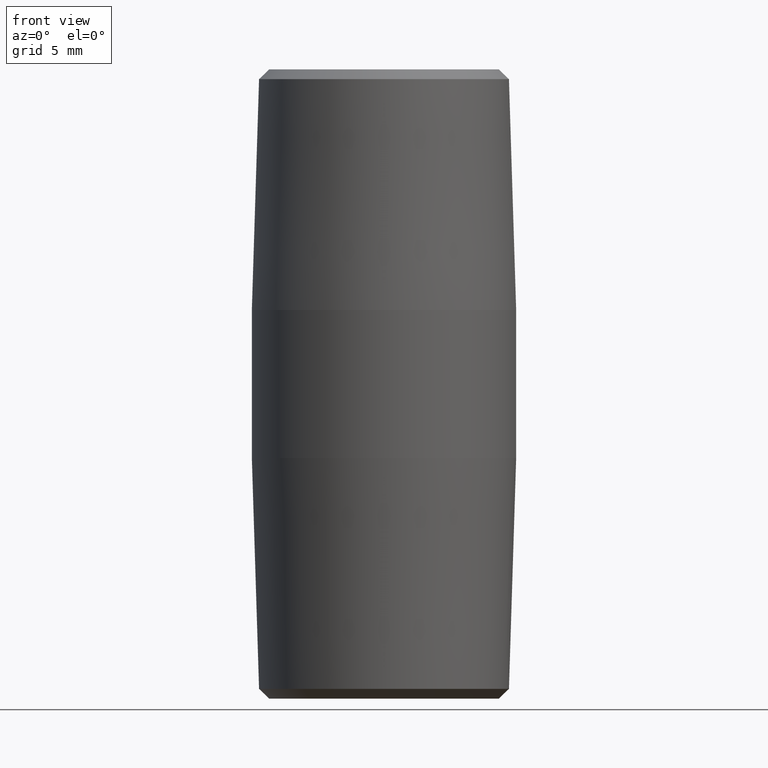
[diagram: clean part render]
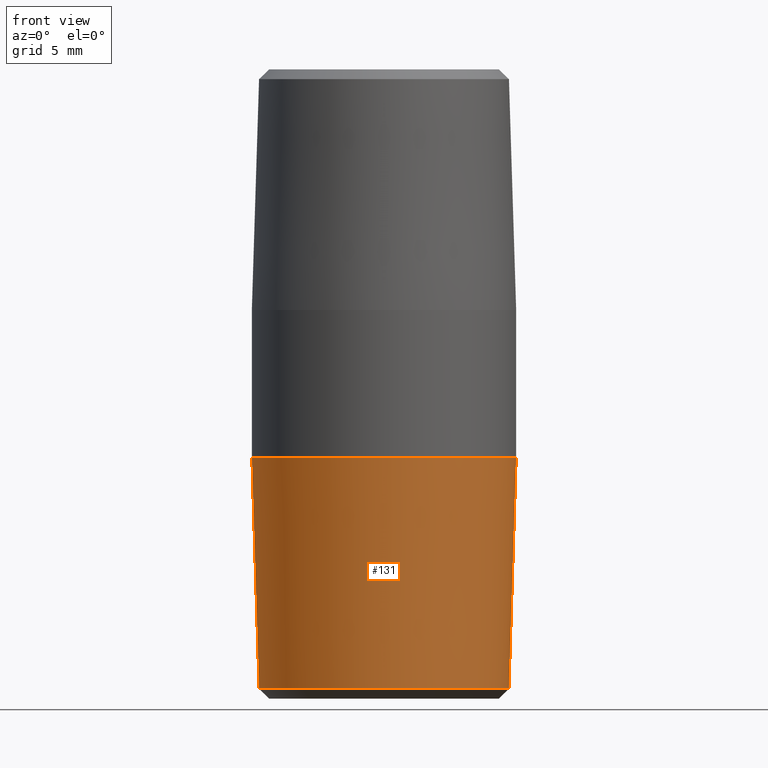
[diagram: same view with one face highlighted and labeled with its STEP entity id]
A machine part, front view. The second image highlights one B-rep face of the part: STEP entity #131.
In plain terms, the highlighted conical surface has half-angle 1.79 deg.
Its self-contained STEP definition (entity closure, byte-faithful):
#21=CONICAL_SURFACE('',#166,0.42,0.0312413936106985);
#27=FACE_OUTER_BOUND('',#36,.T.);
#36=EDGE_LOOP('',(#103,#104,#105,#106,#107));
#44=LINE('',#239,#50);
#50=VECTOR('',#203,0.42);
#57=CIRCLE('',#164,0.39706869004);
#59=CIRCLE('',#167,0.42);
#60=CIRCLE('',#168,0.42);
#66=VERTEX_POINT('',#232);
#68=VERTEX_POINT('',#238);
#69=VERTEX_POINT('',#240);
#78=EDGE_CURVE('',#66,#66,#57,.T.);
#81=EDGE_CURVE('',#66,#68,#44,.T.);
#82=EDGE_CURVE('',#69,#68,#59,.T.);
#83=EDGE_CURVE('',#68,#69,#60,.T.);
#103=ORIENTED_EDGE('',*,*,#78,.F.);
#104=ORIENTED_EDGE('',*,*,#81,.T.);
#105=ORIENTED_EDGE('',*,*,#82,.F.);
#106=ORIENTED_EDGE('',*,*,#83,.F.);
#107=ORIENTED_EDGE('',*,*,#81,.F.);
#131=ADVANCED_FACE('',(#27),#21,.T.);
#164=AXIS2_PLACEMENT_3D('',#233,#196,#197);
#166=AXIS2_PLACEMENT_3D('',#237,#201,#202);
#167=AXIS2_PLACEMENT_3D('',#241,#204,#205);
#168=AXIS2_PLACEMENT_3D('',#242,#206,#207);
#196=DIRECTION('center_axis',(0.,0.,-1.));
#197=DIRECTION('ref_axis',(1.,-6.12303176911189E-17,0.));
#201=DIRECTION('center_axis',(0.,0.,1.));
#202=DIRECTION('ref_axis',(1.,0.,0.));
#203=DIRECTION('',(-0.0312363117968641,3.82534492591983E-18,0.999512027354013));
#204=DIRECTION('center_axis',(0.,0.,1.));
#205=DIRECTION('ref_axis',(-1.,0.,0.));
#206=DIRECTION('center_axis',(0.,0.,1.));
#207=DIRECTION('ref_axis',(-1.,0.,0.));
#232=CARTESIAN_POINT('',(-0.39706869004,9.72505681453825E-17,-0.968765249145187));
#233=CARTESIAN_POINT('Origin',(0.,2.43126420363456E-17,-0.968765249145187));
#237=CARTESIAN_POINT('Origin',(0.,0.,-0.235));
#238=CARTESIAN_POINT('',(-0.42,5.14351655641888E-17,-0.235));
#239=CARTESIAN_POINT('',(-0.42,5.14351655641888E-17,-0.235));
#240=CARTESIAN_POINT('',(0.42,5.14351655641888E-17,-0.235));
#241=CARTESIAN_POINT('Origin',(0.,0.,-0.235));
#242=CARTESIAN_POINT('Origin',(0.,0.,-0.235));